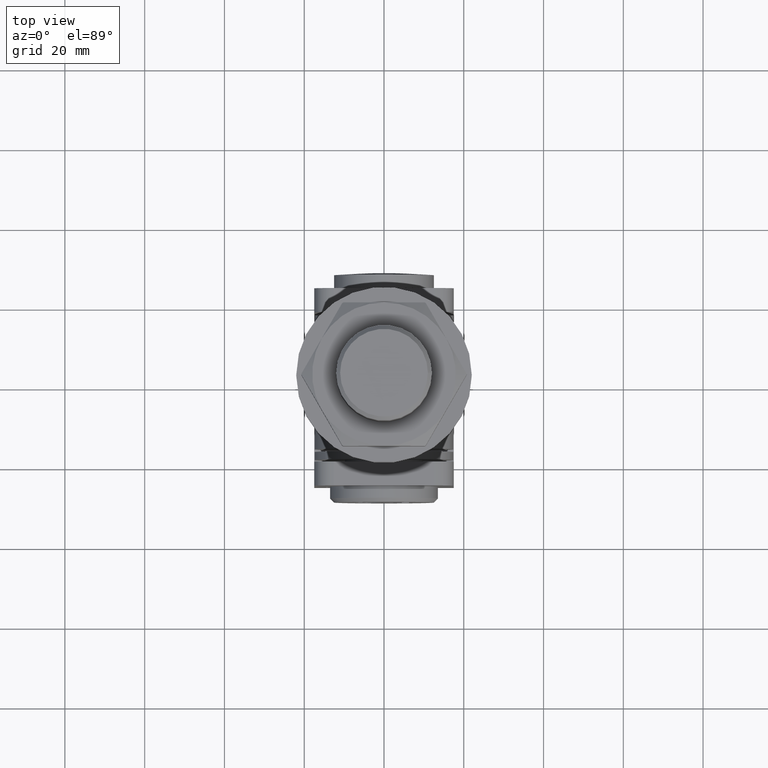
[diagram: clean part render]
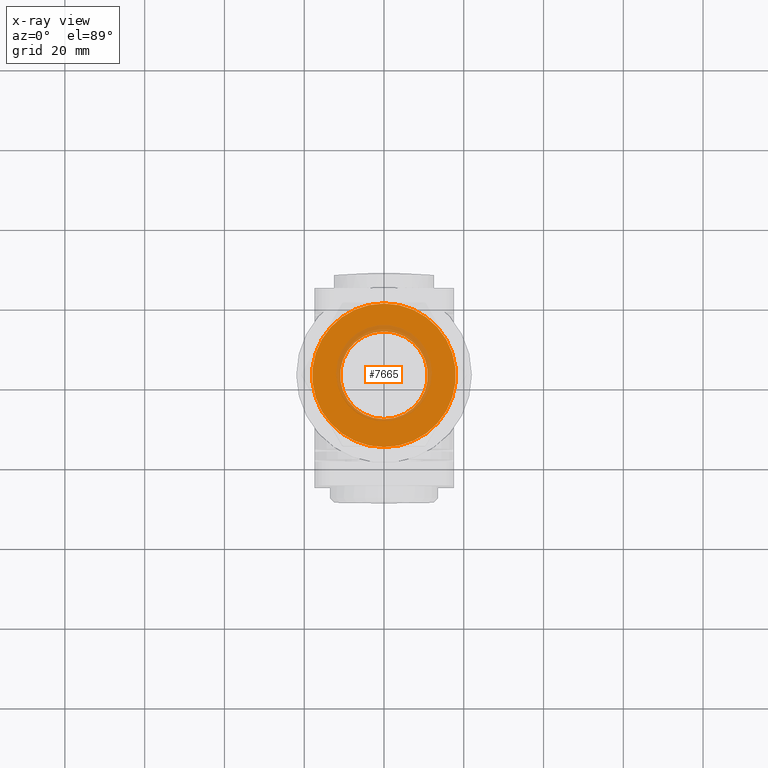
[diagram: x-ray — body ghosted, one internal face saturated and labeled with its STEP entity id]
A machine part, top view, then the same camera in x-ray: the body is ghosted and one INTERNAL B-rep face — a face not visible from any outside direction — is saturated and labeled: STEP entity #7665.
In plain terms, the highlighted planar face has unit normal (-0, 0, 1).
Its self-contained STEP definition (entity closure, byte-faithful):
#188 = ORIENTED_EDGE ( 'NONE', *, *, #18900, .F. ) ;
#360 = DIRECTION ( 'NONE',  ( 7.395570986446924369E-32, -1.000000000000000000, -4.930380657631293130E-32 ) ) ;
#543 = FACE_OUTER_BOUND ( 'NONE', #3590, .T. ) ;
#764 = DIRECTION ( 'NONE',  ( -7.395570986446912327E-32, 1.000000000000000000, -1.183291357831528393E-30 ) ) ;
#867 = VERTEX_POINT ( 'NONE', #9008 ) ;
#1400 = CARTESIAN_POINT ( 'NONE',  ( 0.000000000000000000, 5.000000000000004441, 6.505213034913026604E-16 ) ) ;
#1608 = CARTESIAN_POINT ( 'NONE',  ( -2.276824562219544796E-14, 5.000000000000004441, -17.99999999999978328 ) ) ;
#1893 = DIRECTION ( 'NONE',  ( 7.395570986446924369E-32, -1.000000000000000000, -4.930380657631293130E-32 ) ) ;
#1987 = CARTESIAN_POINT ( 'NONE',  ( -15.58845726811975219, 5.000000000000004441, 8.999999999999889866 ) ) ;
#2386 = CARTESIAN_POINT ( 'NONE',  ( 15.58845726811974863, 5.000000000000004441, 8.999999999999856115 ) ) ;
#2568 = AXIS2_PLACEMENT_3D ( 'NONE', #10097, #764, #23061 ) ;
#3590 = EDGE_LOOP ( 'NONE', ( #9427, #15903, #23811, #188, #4831, #14282 ) ) ;
#3754 = CARTESIAN_POINT ( 'NONE',  ( 0.000000000000000000, 5.000000000000004441, 6.505213034913026604E-16 ) ) ;
#3804 = DIRECTION ( 'NONE',  ( 7.395570986446924369E-32, -1.000000000000000000, -4.930380657631293130E-32 ) ) ;
#3947 = EDGE_CURVE ( 'NONE', #22050, #14315, #17284, .T. ) ;
#4044 = ORIENTED_EDGE ( 'NONE', *, *, #23091, .T. ) ;
#4454 = DIRECTION ( 'NONE',  ( -9.992007221626408864E-16, 0.000000000000000000, 1.000000000000000000 ) ) ;
#4671 = DIRECTION ( 'NONE',  ( 1.110223024625157280E-16, 0.000000000000000000, -1.000000000000000000 ) ) ;
#4760 = DIRECTION ( 'NONE',  ( 7.395570986446924369E-32, -1.000000000000000000, -4.930380657631293130E-32 ) ) ;
#4831 = ORIENTED_EDGE ( 'NONE', *, *, #3947, .F. ) ;
#4964 = DIRECTION ( 'NONE',  ( 7.395570986446924369E-32, -1.000000000000000000, -4.930380657631293130E-32 ) ) ;
#5381 = VERTEX_POINT ( 'NONE', #23415 ) ;
#5445 = FACE_BOUND ( 'NONE', #12320, .T. ) ;
#6059 = DIRECTION ( 'NONE',  ( -1.110223024625157280E-16, 0.000000000000000000, 1.000000000000000000 ) ) ;
#6333 = AXIS2_PLACEMENT_3D ( 'NONE', #23830, #20444, #22118 ) ;
#6449 = VERTEX_POINT ( 'NONE', #2386 ) ;
#6582 = CIRCLE ( 'NONE', #6333, 17.99999999999983658 ) ;
#7023 = AXIS2_PLACEMENT_3D ( 'NONE', #3754, #1893, #20529 ) ;
#7665 = ADVANCED_FACE ( 'NONE', ( #5445, #543 ), #19108, .T. ) ;
#8389 = AXIS2_PLACEMENT_3D ( 'NONE', #12794, #3804, #13127 ) ;
#8995 = EDGE_CURVE ( 'NONE', #12276, #22050, #6582, .T. ) ;
#9008 = CARTESIAN_POINT ( 'NONE',  ( -1.084202172485493193E-15, 5.000000000000004441, 17.99999999999971578 ) ) ;
#9249 = EDGE_CURVE ( 'NONE', #6449, #867, #19039, .T. ) ;
#9427 = ORIENTED_EDGE ( 'NONE', *, *, #16445, .F. ) ;
#10097 = CARTESIAN_POINT ( 'NONE',  ( 0.000000000000000000, 5.000000000000004441, 6.505213034913026604E-16 ) ) ;
#10418 = AXIS2_PLACEMENT_3D ( 'NONE', #15742, #15654, #4671 ) ;
#10498 = CIRCLE ( 'NONE', #16040, 10.99999999999991651 ) ;
#10560 = CIRCLE ( 'NONE', #8389, 17.99999999999983658 ) ;
#11678 = AXIS2_PLACEMENT_3D ( 'NONE', #19133, #4760, #4454 ) ;
#12276 = VERTEX_POINT ( 'NONE', #1987 ) ;
#12320 = EDGE_LOOP ( 'NONE', ( #4044 ) ) ;
#12373 = CIRCLE ( 'NONE', #10418, 17.99999999999983658 ) ;
#12794 = CARTESIAN_POINT ( 'NONE',  ( 0.000000000000000000, 5.000000000000004441, 6.505213034913026604E-16 ) ) ;
#13127 = DIRECTION ( 'NONE',  ( -1.110223024625157280E-16, 0.000000000000000000, 1.000000000000000000 ) ) ;
#14263 = AXIS2_PLACEMENT_3D ( 'NONE', #22328, #360, #6059 ) ;
#14282 = ORIENTED_EDGE ( 'NONE', *, *, #8995, .F. ) ;
#14315 = VERTEX_POINT ( 'NONE', #1608 ) ;
#15031 = CARTESIAN_POINT ( 'NONE',  ( -1.221245327087663714E-15, 5.000000000000004441, 10.99999999999991651 ) ) ;
#15654 = DIRECTION ( 'NONE',  ( 7.395570986446924369E-32, -1.000000000000000000, -4.930380657631293130E-32 ) ) ;
#15742 = CARTESIAN_POINT ( 'NONE',  ( 0.000000000000000000, 5.000000000000004441, 6.505213034913026604E-16 ) ) ;
#15903 = ORIENTED_EDGE ( 'NONE', *, *, #9249, .F. ) ;
#15946 = EDGE_CURVE ( 'NONE', #5381, #6449, #23546, .T. ) ;
#16040 = AXIS2_PLACEMENT_3D ( 'NONE', #1400, #4964, #21268 ) ;
#16445 = EDGE_CURVE ( 'NONE', #867, #12276, #10560, .T. ) ;
#17284 = CIRCLE ( 'NONE', #14263, 17.99999999999983658 ) ;
#18900 = EDGE_CURVE ( 'NONE', #14315, #5381, #12373, .T. ) ;
#19039 = CIRCLE ( 'NONE', #11678, 17.99999999999983658 ) ;
#19108 = PLANE ( 'NONE',  #2568 ) ;
#19133 = CARTESIAN_POINT ( 'NONE',  ( 0.000000000000000000, 5.000000000000004441, 6.505213034913026604E-16 ) ) ;
#19399 = CARTESIAN_POINT ( 'NONE',  ( -15.58845726811982857, 5.000000000000004441, -8.999999999999886313 ) ) ;
#20444 = DIRECTION ( 'NONE',  ( 7.395570986446924369E-32, -1.000000000000000000, -4.930380657631293130E-32 ) ) ;
#20529 = DIRECTION ( 'NONE',  ( 3.441691376337985670E-15, 0.000000000000000000, 1.000000000000000000 ) ) ;
#21268 = DIRECTION ( 'NONE',  ( -1.110223024625157280E-16, 0.000000000000000000, 1.000000000000000000 ) ) ;
#22050 = VERTEX_POINT ( 'NONE', #19399 ) ;
#22118 = DIRECTION ( 'NONE',  ( -1.110223024625157280E-16, 0.000000000000000000, 1.000000000000000000 ) ) ;
#22328 = CARTESIAN_POINT ( 'NONE',  ( 0.000000000000000000, 5.000000000000004441, 6.505213034913026604E-16 ) ) ;
#22701 = VERTEX_POINT ( 'NONE', #15031 ) ;
#23061 = DIRECTION ( 'NONE',  ( -1.110223024625157280E-16, 1.183291357831528393E-30, 1.000000000000000000 ) ) ;
#23091 = EDGE_CURVE ( 'NONE', #22701, #22701, #10498, .T. ) ;
#23415 = CARTESIAN_POINT ( 'NONE',  ( 15.58845726811974508, 5.000000000000004441, -8.999999999999868550 ) ) ;
#23546 = CIRCLE ( 'NONE', #7023, 17.99999999999983658 ) ;
#23811 = ORIENTED_EDGE ( 'NONE', *, *, #15946, .F. ) ;
#23830 = CARTESIAN_POINT ( 'NONE',  ( 0.000000000000000000, 5.000000000000004441, 6.505213034913026604E-16 ) ) ;